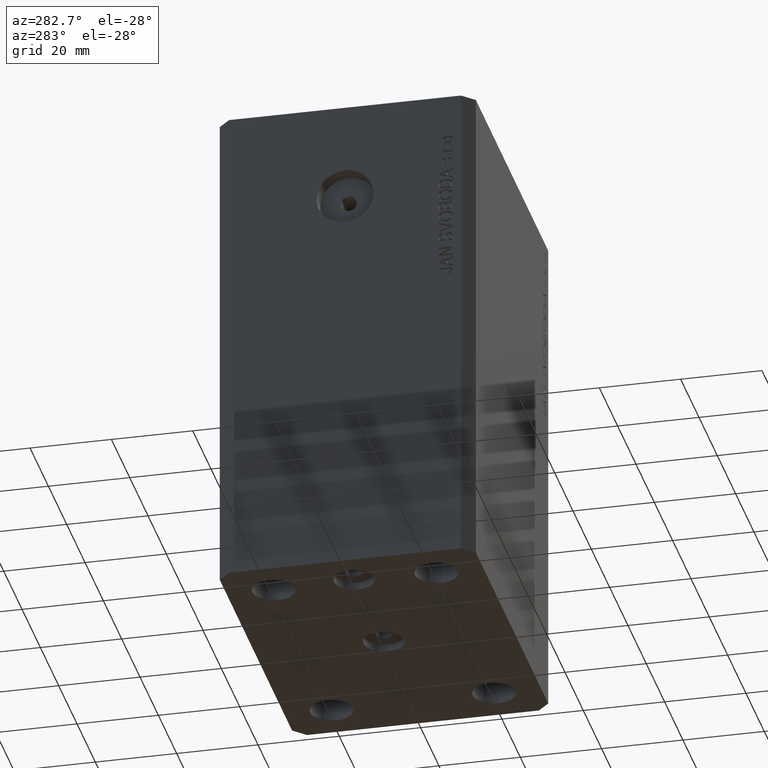
[diagram: clean part render]
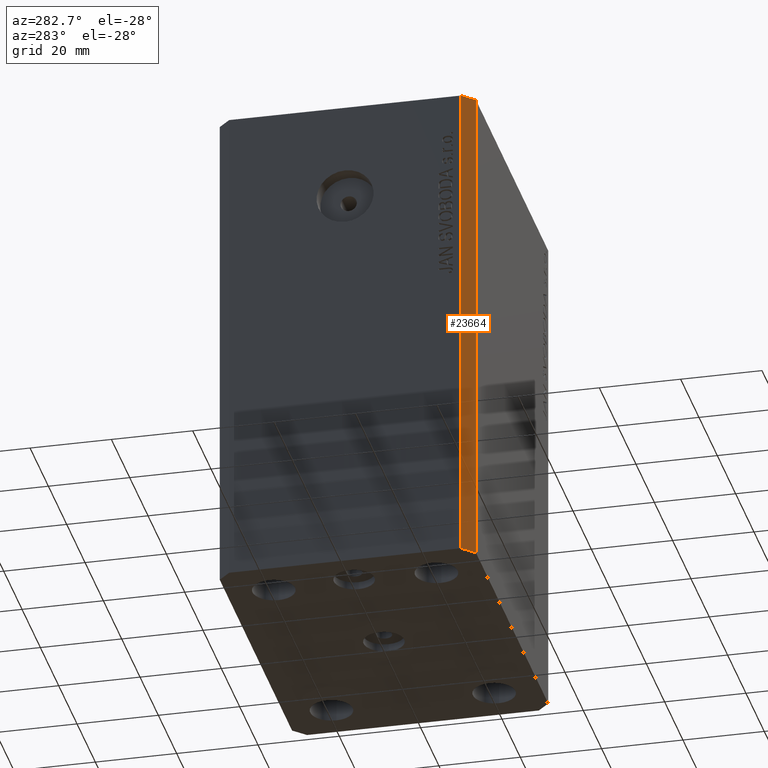
[diagram: same view with one face highlighted and labeled with its STEP entity id]
A machine part, auxiliary view. The second image highlights one B-rep face of the part: STEP entity #23664.
In plain terms, the highlighted planar face has unit normal (-0.7071, -0.7071, 0).
Its self-contained STEP definition (entity closure, byte-faithful):
#1112 = DIRECTION ( 'NONE',  ( -0.7071067811865479058, -0.7071067811865472397, 0.000000000000000000 ) ) ;
#1776 = ORIENTED_EDGE ( 'NONE', *, *, #7862, .F. ) ;
#1987 = EDGE_CURVE ( 'NONE', #26774, #23005, #21769, .T. ) ;
#4722 = FACE_OUTER_BOUND ( 'NONE', #41709, .T. ) ;
#5142 = LINE ( 'NONE', #42555, #12158 ) ;
#7110 = DIRECTION ( 'NONE',  ( 0.000000000000000000, 0.000000000000000000, 1.000000000000000000 ) ) ;
#7862 = EDGE_CURVE ( 'NONE', #35105, #23345, #5142, .T. ) ;
#9200 = ORIENTED_EDGE ( 'NONE', *, *, #18652, .F. ) ;
#11253 = CARTESIAN_POINT ( 'NONE',  ( -42.50000000000000000, -28.50000000000000000, -123.0000000000000000 ) ) ;
#11559 = CARTESIAN_POINT ( 'NONE',  ( -39.50000000000000711, -31.50000000000000000, -123.0000000000000000 ) ) ;
#12158 = VECTOR ( 'NONE', #22044, 1000.000000000000000 ) ;
#14337 = DIRECTION ( 'NONE',  ( 0.7071067811865471286, -0.7071067811865479058, 0.000000000000000000 ) ) ;
#14595 = ORIENTED_EDGE ( 'NONE', *, *, #1987, .T. ) ;
#14855 = DIRECTION ( 'NONE',  ( 0.7071067811865472397, -0.7071067811865479058, 0.000000000000000000 ) ) ;
#18652 = EDGE_CURVE ( 'NONE', #26774, #35105, #24241, .T. ) ;
#21769 = LINE ( 'NONE', #24273, #39010 ) ;
#22044 = DIRECTION ( 'NONE',  ( 0.7071067811865471286, -0.7071067811865479058, 0.000000000000000000 ) ) ;
#23005 = VERTEX_POINT ( 'NONE', #11559 ) ;
#23227 = AXIS2_PLACEMENT_3D ( 'NONE', #11253, #1112, #14855 ) ;
#23345 = VERTEX_POINT ( 'NONE', #25810 ) ;
#23664 = ADVANCED_FACE ( 'NONE', ( #4722 ), #40849, .T. ) ;
#24224 = CARTESIAN_POINT ( 'NONE',  ( -42.50000000000000000, -28.50000000000000000, 0.000000000000000000 ) ) ;
#24241 = LINE ( 'NONE', #38005, #42537 ) ;
#24273 = CARTESIAN_POINT ( 'NONE',  ( -42.50000000000000000, -28.50000000000000000, -123.0000000000000000 ) ) ;
#25810 = CARTESIAN_POINT ( 'NONE',  ( -39.50000000000000711, -31.50000000000000000, 0.000000000000000000 ) ) ;
#26774 = VERTEX_POINT ( 'NONE', #35269 ) ;
#28574 = LINE ( 'NONE', #35115, #29724 ) ;
#28610 = EDGE_CURVE ( 'NONE', #23005, #23345, #28574, .T. ) ;
#29724 = VECTOR ( 'NONE', #31975, 1000.000000000000000 ) ;
#30146 = ORIENTED_EDGE ( 'NONE', *, *, #28610, .T. ) ;
#31975 = DIRECTION ( 'NONE',  ( 0.000000000000000000, 0.000000000000000000, 1.000000000000000000 ) ) ;
#35105 = VERTEX_POINT ( 'NONE', #24224 ) ;
#35115 = CARTESIAN_POINT ( 'NONE',  ( -39.50000000000000711, -31.50000000000000000, -123.0000000000000000 ) ) ;
#35269 = CARTESIAN_POINT ( 'NONE',  ( -42.50000000000000000, -28.50000000000000000, -123.0000000000000000 ) ) ;
#38005 = CARTESIAN_POINT ( 'NONE',  ( -42.50000000000000000, -28.50000000000000000, -123.0000000000000000 ) ) ;
#39010 = VECTOR ( 'NONE', #14337, 1000.000000000000000 ) ;
#40849 = PLANE ( 'NONE',  #23227 ) ;
#41709 = EDGE_LOOP ( 'NONE', ( #1776, #9200, #14595, #30146 ) ) ;
#42537 = VECTOR ( 'NONE', #7110, 1000.000000000000000 ) ;
#42555 = CARTESIAN_POINT ( 'NONE',  ( -42.50000000000000000, -28.50000000000000000, 0.000000000000000000 ) ) ;